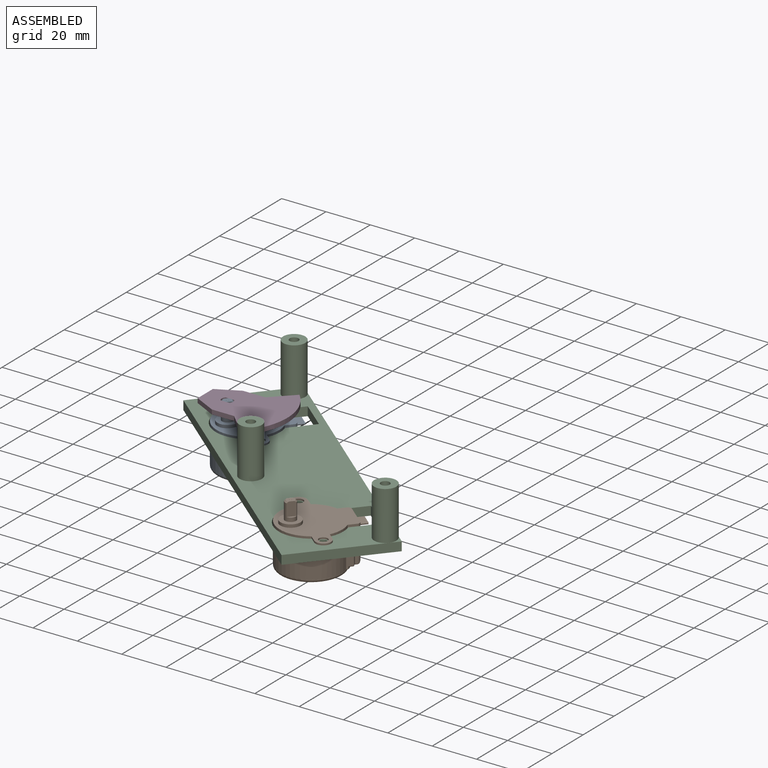
[diagram: assembled view]
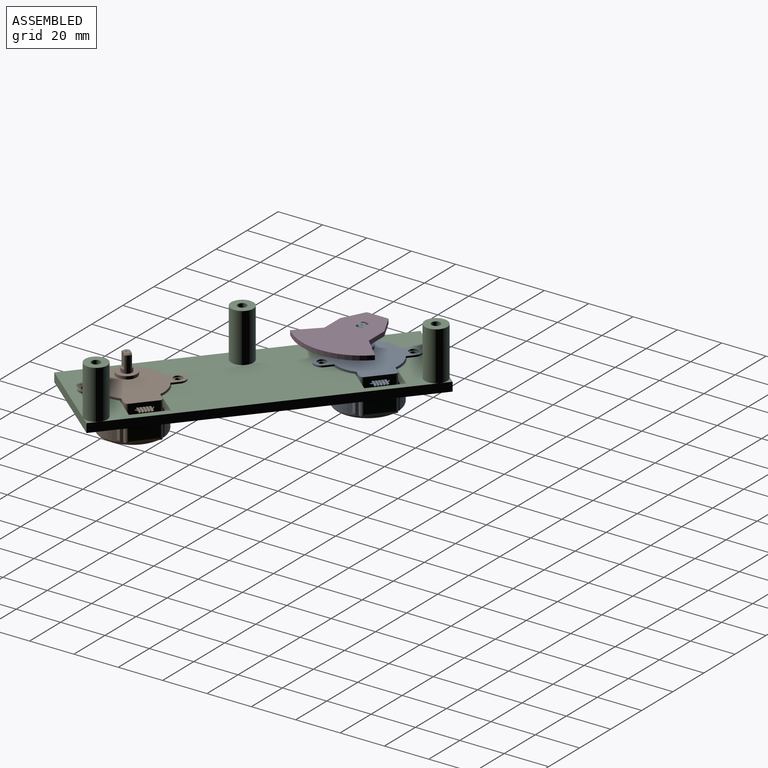
[diagram: assembled view, second angle]
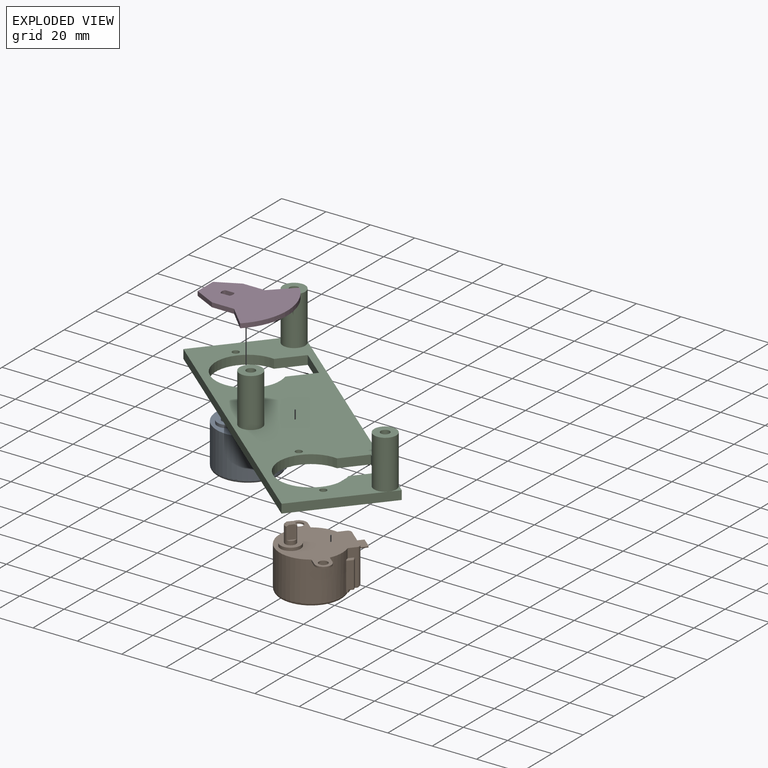
[diagram: exploded view]
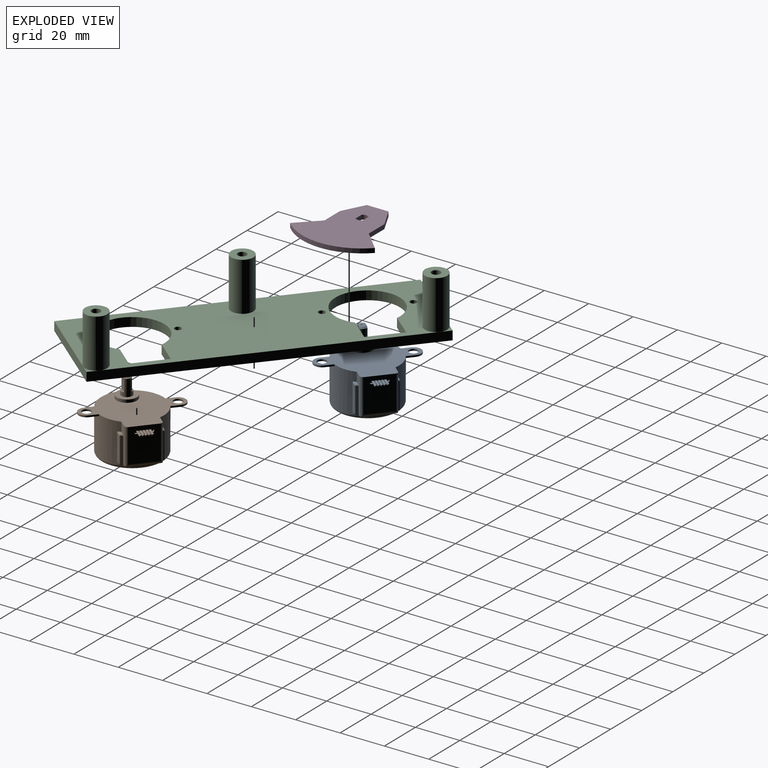
[diagram: exploded view, second angle]
ASSEMBLY  parts=4 mates=3
PART A: 77 faces, bbox 36.6x42.1x28.7 mm
  f0: cylinder r=0.5mm len=5mm, axis (-1,0,0), area 15.7mm2, adj f1,f70
  f1: plane 1x1mm, normal (1,0,0), area 0.8mm2, adj f0
  f2: cylinder r=0.5mm len=5mm, axis (-1,0,0), area 15.7mm2, adj f3,f70
  f3: plane 1x1mm, normal (1,0,0), area 0.8mm2, adj f2
  f4: cylinder r=2.45mm len=7.4mm, axis (0,0,-1), area 63.9mm2, adj f5,f6,f8,f11,f12,f13,f14
  f5: cone r=1.85mm half-angle=45deg, axis (0,0,-1), area 2.9mm2, adj f4,f7,f12,f14
  f6: cone r=1.85mm half-angle=45deg, axis (0,0,-1), area 2.9mm2, adj f4,f7,f12,f14
  f7: plane 3.7x3mm, normal (0,0,1), area 8.6mm2, adj f5,f6,f9,f12,f14
  f8: plane 9.1x9.1mm, normal (0,0,1), area 46.2mm2, adj f4,f10
  f9: cone r=0.6mm half-angle=45deg, axis (0,0,1), area 1.6mm2, adj f7
  f10: cylinder r=4.55mm len=9.1mm, axis (0,0,-1), area 38.6mm2, adj f8,f29
  f11: plane 3.87x0.95mm, normal (0,0,1), area 2.6mm2, adj f4,f12
  f12: plane 6.31x3.98mm, normal (0,-1,0), area 23.5mm2, adj f4,f5,f6,f7,f11
  f13: plane 3.87x0.95mm, normal (0,0,1), area 2.6mm2, adj f4,f14
  f14: plane 6.31x3.98mm, normal (0,1,0), area 23.5mm2, adj f4,f5,f6,f7,f13
  f15: plane 15.2x11.8mm, normal (1,0,0), area 169.8mm2, adj f29,f44,f45,f46,f66,f67,f68,f69
  f16: cylinder r=14.1mm len=28.2mm, axis (0,0,1), area 1244mm2, adj f17,f18,f19,f20,f21,f22,f23,f28
  f17: plane 16.5x3.36mm, normal (0,0,-1), area 25.3mm2, adj f16,f38,f39,f41,f42,f45,f52,f54
  f18: plane 16.28x3.78mm, normal (0,1,0), area 27.3mm2, adj f16,f29,f32,f33,f44,f48,f55
  f19: plane 3.84x0.75mm, normal (-1,0,0), area 2.9mm2, adj f16,f25,f28,f29
  f20: plane 3.84x0.75mm, normal (-1,0,0), area 2.9mm2, adj f16,f23,f24,f29
  f21: plane 3.84x0.75mm, normal (1,0,0), area 2.9mm2, adj f16,f25,f28,f29
  f22: plane 3.84x0.75mm, normal (1,0,0), area 2.9mm2, adj f16,f23,f24,f29
  f23: plane 7.34x7mm, normal (0,0,-1), area 31.5mm2, adj f16,f20,f22,f24,f27
  f24: cylinder r=3.5mm len=7mm, axis (0,0,1), area 8.2mm2, adj f20,f22,f23,f29
  f25: cylinder r=3.5mm len=7mm, axis (0,0,1), area 8.2mm2, adj f19,f21,f28,f29
  f26: cylinder r=2mm len=4mm, axis (0,0,1), area 9.4mm2, adj f28,f29
  f27: cylinder r=2mm len=4mm, axis (0,0,1), area 9.4mm2, adj f23,f29
  f28: plane 7.34x7mm, normal (0,0,-1), area 31.5mm2, adj f16,f19,f21,f25,f26
  f29: plane 42x31.3mm, normal (0,0,1), area 677.5mm2, adj f10,f15,f16,f18,f19,f20,f21,f22
  f30: plane 25.2x25.2mm, normal (0,0,-1), area 498.8mm2, adj f47
  f31: plane 16.28x3.78mm, normal (0,-1,0), area 27.3mm2, adj f16,f29,f35,f36,f46,f58,f64
  f32: plane 2.73x0.85mm, normal (0,0,1), area 1.9mm2, adj f16,f18,f48,f49
  f33: plane 11.6x1.02mm, normal (0.94,0.35,0), area 12.7mm2, adj f18,f48,f51,f54
  f34: plane 12.85x2.8mm, normal (0,1,0), area 33.6mm2, adj f16,f39,f40,f49,f51,f52
  f35: plane 2.73x0.85mm, normal (0,0,1), area 1.9mm2, adj f16,f31,f57,f58
  f36: plane 11.6x1.02mm, normal (0.94,-0.35,0), area 12.7mm2, adj f31,f58,f61,f63
  f37: plane 12.85x2.8mm, normal (0,-1,0), area 33.6mm2, adj f16,f41,f43,f57,f60,f61
  f38: plane 0.75x0.75mm, normal (0,-1,0), area 0.6mm2, adj f16,f17,f39,f40
  f39: cylinder r=14.85mm len=7.25mm, axis (0,0,1), area 6mm2, adj f17,f34,f38,f40,f52
  f40: plane 7.25x3.71mm, normal (0,0,-1), area 5.9mm2, adj f16,f34,f38,f39
  f41: cylinder r=14.85mm len=7.25mm, axis (0,0,1), area 6mm2, adj f17,f37,f42,f43,f60
  f42: plane 0.75x0.75mm, normal (0,1,0), area 0.6mm2, adj f16,f17,f41,f43
  f43: plane 7.25x3.71mm, normal (0,0,-1), area 5.9mm2, adj f16,f37,f41,f42
  f44: cylinder r=1.5mm len=16.2mm, axis (0,0,-1), area 37.3mm2, adj f15,f18,f29,f56
  f45: cylinder r=1.5mm len=13.8mm, axis (0,-1,0), area 30.8mm2, adj f15,f17,f56,f65
  f46: cylinder r=1.5mm len=16.2mm, axis (0,0,1), area 37.3mm2, adj f15,f29,f31,f65
  f47: torus R=12.6mm, axis (0,0,-1), area 200.7mm2, adj f16,f30
  f48: cylinder r=0.5mm len=1.2mm, axis (-0.35,0.94,0), area 0.8mm2, adj f18,f32,f33,f50
  f49: cylinder r=0.5mm len=2.8mm, axis (-1,0,0), area 2mm2, adj f16,f32,f34,f50
  f50: sphere r=0.5mm, area 0.3mm2, adj f48,f49,f51
  f51: cylinder r=0.5mm len=11.6mm, axis (0,0,-1), area 7.1mm2, adj f33,f34,f50,f53
  f52: cylinder r=0.5mm len=1.86mm, axis (-1,0,0), area 1.3mm2, adj f17,f34,f39,f53
  f53: sphere r=0.5mm, area 0.3mm2, adj f51,f52,f54
  f54: cylinder r=0.5mm len=1.52mm, axis (-0.35,0.94,0), area 1mm2, adj f17,f33,f53,f55
  f55: cylinder r=0.5mm len=1.35mm, axis (1,0,0), area 0.9mm2, adj f17,f18,f54,f56
  f56: bspline ~1.76x1.5mm, area 1.3mm2, adj f44,f45,f55
  f57: cylinder r=0.5mm len=2.8mm, axis (1,0,0), area 2mm2, adj f16,f35,f37,f59
  f58: cylinder r=0.5mm len=1.2mm, axis (0.35,0.94,0), area 0.8mm2, adj f31,f35,f36,f59
  f59: sphere r=0.5mm, area 0.3mm2, adj f57,f58,f61
  f60: cylinder r=0.5mm len=1.86mm, axis (1,0,0), area 1.3mm2, adj f17,f37,f41,f62
  f61: cylinder r=0.5mm len=11.6mm, axis (0,0,-1), area 7.1mm2, adj f36,f37,f59,f62
  f62: sphere r=0.5mm, area 0.3mm2, adj f60,f61,f63
  f63: cylinder r=0.5mm len=1.52mm, axis (0.35,0.94,0), area 1mm2, adj f17,f36,f62,f64
  f64: cylinder r=0.5mm len=1.35mm, axis (-1,0,0), area 0.9mm2, adj f17,f31,f63,f65
  f65: bspline ~1.76x1.5mm, area 1.3mm2, adj f45,f46,f64
  f66: plane 6.3x1mm, normal (0,0,1), area 6.3mm2, adj f15,f67,f69,f70
  f67: cylinder r=0.65mm len=1.3mm, axis (1,0,0), area 2mm2, adj f15,f66,f68,f70
  f68: plane 6.3x1mm, normal (0,0,-1), area 6.3mm2, adj f15,f67,f69,f70
  f69: cylinder r=0.65mm len=1.3mm, axis (1,0,0), area 2mm2, adj f15,f66,f68,f70
  f70: plane 7.6x1.3mm, normal (1,0,0), area 5.6mm2, adj f0,f2,f66,f67,f68,f69,f71,f73
  f71: cylinder r=0.5mm len=5mm, axis (-1,0,0), area 15.7mm2, adj f70,f72
  f72: plane 1x1mm, normal (1,0,0), area 0.8mm2, adj f71
  f73: cylinder r=0.5mm len=5mm, axis (-1,0,0), area 15.7mm2, adj f70,f74
  f74: plane 1x1mm, normal (1,0,0), area 0.8mm2, adj f73
  f75: cylinder r=0.5mm len=5mm, axis (-1,0,0), area 15.7mm2, adj f70,f76
  f76: plane 1x1mm, normal (1,0,0), area 0.8mm2, adj f75
PART B: same geometry as A
PART C: 29 faces, bbox 46x140x26 mm
  f0: plane 5x5mm, normal (0,0,1), area 5.4mm2, adj f5,f6,f24
  f1: plane 5x5mm, normal (0,0,1), area 5.4mm2, adj f4,f5,f20
  f2: plane 140x46mm, normal (0,0,1), area 4483.6mm2, adj f4,f5,f6,f7,f8,f9,f10,f11
  f3: plane 140x46mm, normal (0,0,-1), area 4692.2mm2, adj f4,f5,f6,f7,f8,f9,f10,f11
  f4: plane 46x4mm, normal (0,1,0), area 184mm2, adj f1,f2,f3,f5,f7
  f5: plane 140x4mm, normal (-1,0,0), area 560mm2, adj f0,f1,f2,f3,f4,f6
  f6: plane 46x4mm, normal (0,-1,0), area 184mm2, adj f0,f2,f3,f5,f7
  f7: plane 140x4mm, normal (1,0,0), area 560mm2, adj f2,f3,f4,f6
  f8: cylinder r=1.5mm len=4mm, axis (0,0,1), area 37.7mm2, adj f2,f3
  f9: cylinder r=14.5mm len=29mm, axis (0,0,1), area 296.6mm2, adj f2,f3,f10,f12
  f10: plane 12.91x4mm, normal (0,-1,0), area 51.6mm2, adj f2,f3,f9,f11
  f11: plane 16x4mm, normal (1,0,0), area 64mm2, adj f2,f3,f10,f12
  f12: plane 12.91x4mm, normal (0,1,0), area 51.6mm2, adj f2,f3,f9,f11
  f13: cylinder r=1.5mm len=4mm, axis (0,0,1), area 37.7mm2, adj f2,f3
  f14: cylinder r=1.5mm len=4mm, axis (0,0,1), area 37.7mm2, adj f2,f3
  f15: cylinder r=1.5mm len=4mm, axis (0,0,1), area 37.7mm2, adj f2,f3
  f16: cylinder r=14.5mm len=29mm, axis (0,0,1), area 296.6mm2, adj f2,f3,f17,f19
  f17: plane 12.91x4mm, normal (0,-1,0), area 51.6mm2, adj f2,f3,f16,f18
  f18: plane 16x4mm, normal (1,0,0), area 64mm2, adj f2,f3,f17,f19
  f19: plane 12.91x4mm, normal (0,1,0), area 51.6mm2, adj f2,f3,f16,f18
  f20: cylinder r=5mm len=22mm, axis (0,0,-1), area 691.2mm2, adj f1,f2,f21
  f21: plane 10x10mm, normal (0,0,1), area 66mm2, adj f20,f28
  f22: cylinder r=5mm len=22mm, axis (0,0,-1), area 691.2mm2, adj f2,f23
  f23: plane 10x10mm, normal (0,0,1), area 66mm2, adj f22,f27
  f24: cylinder r=5mm len=22mm, axis (0,0,-1), area 691.2mm2, adj f0,f2,f25
  f25: plane 10x10mm, normal (0,0,1), area 66mm2, adj f24,f26
  f26: cylinder r=2mm len=26mm, axis (0,0,-1), area 326.7mm2, adj f3,f25
  f27: cylinder r=2mm len=26mm, axis (0,0,-1), area 326.7mm2, adj f3,f23
  f28: cylinder r=2mm len=26mm, axis (0,0,-1), area 326.7mm2, adj f3,f21
PART D: 14 faces, bbox 37x38.2x2 mm
  f0: plane 10x2mm, normal (0,1,0), area 20mm2, adj f1,f7,f8,f9
  f1: plane 10x5.1mm, normal (-0.45,0.89,0), area 22.4mm2, adj f0,f2,f8,f9
  f2: plane 9.8x2mm, normal (-1,0,0), area 19.6mm2, adj f1,f3,f8,f9
  f3: plane 10x5.1mm, normal (-0.45,-0.89,0), area 22.4mm2, adj f2,f4,f8,f9
  f4: plane 10x2mm, normal (0,-1,0), area 20mm2, adj f3,f5,f8,f9
  f5: plane 9.09x9.09mm, normal (-0.71,-0.71,0), area 25.7mm2, adj f4,f6,f8,f9
  f6: cylinder r=27mm len=38.18mm, axis (0,0,-1), area 84.8mm2, adj f5,f7,f8,f9
  f7: plane 9.09x9.09mm, normal (-0.71,0.71,0), area 25.7mm2, adj f0,f6,f8,f9
  f8: plane 38.18x37mm, normal (0,0,1), area 806.8mm2, adj f0,f1,f2,f3,f4,f5,f6,f7
  f9: plane 38.18x37mm, normal (0,0,-1), area 806.8mm2, adj f0,f1,f2,f3,f4,f5,f6,f7
  f10: plane 4.05x2mm, normal (0,-1,0), area 8.1mm2, adj f8,f9,f11,f13
  f11: cylinder r=2.55mm len=3.1mm, axis (0,0,1), area 6.7mm2, adj f8,f9,f10,f12
  f12: plane 4.05x2mm, normal (0,1,0), area 8.1mm2, adj f8,f9,f11,f13
  f13: cylinder r=2.55mm len=3.1mm, axis (0,0,1), area 6.7mm2, adj f8,f9,f10,f12
PLACE A rot(axis=(0,0,1),50deg) t=(-45.04,-47.58,-3.54)mm
PLACE B rot(axis=(0,0,1),50deg) t=(23.91,-105.43,-3.54)mm
PLACE C rot(axis=(0,0,-1),130deg) t=(-11.95,-78.16,-8.29)mm fixed
PLACE D t=(-45.04,-47.58,3.81)mm
MATE fastened B.f24 <-> C.f13  axis (0,0,-1) through (42.36,-110.67,-4.29)mm
MATE revolute D.f6 <-> A.f4  axis (0,0,1) through (-45.04,-47.58,5.81)mm
MATE fastened A.f24 <-> C.f14  axis (0,0,-1) through (-26.59,-52.82,-4.29)mm
